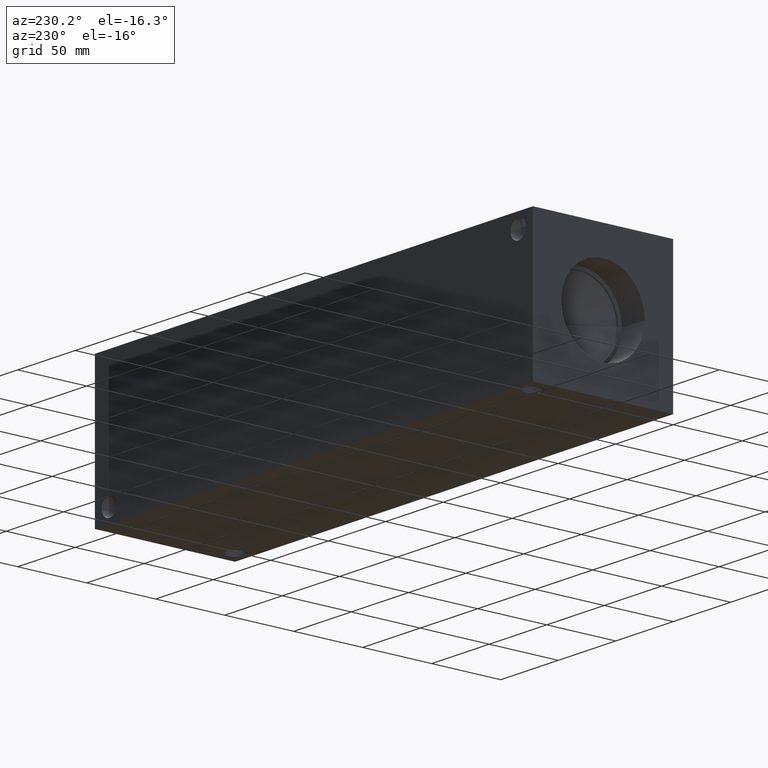
[diagram: clean part render]
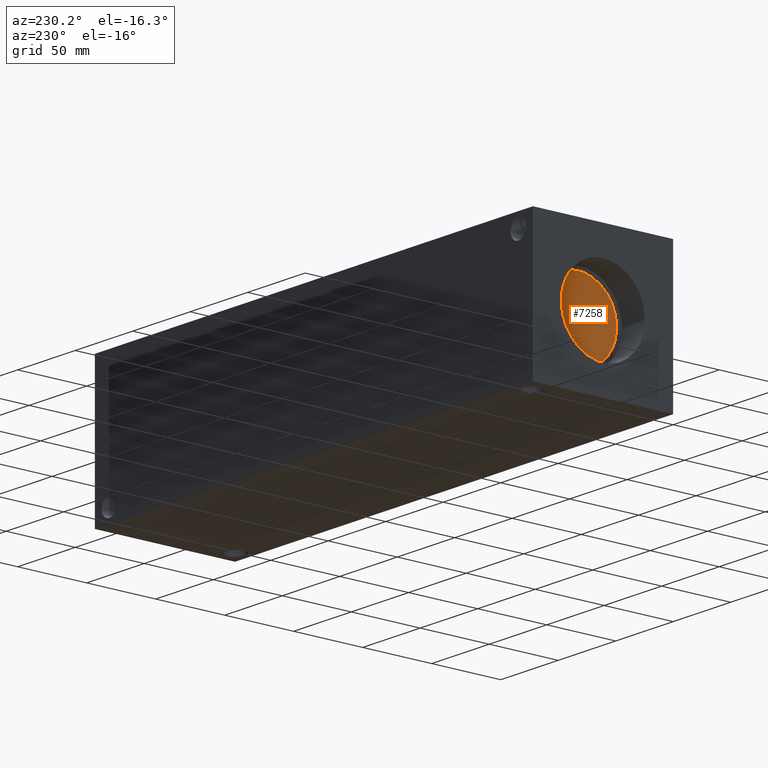
[diagram: same view with one face highlighted and labeled with its STEP entity id]
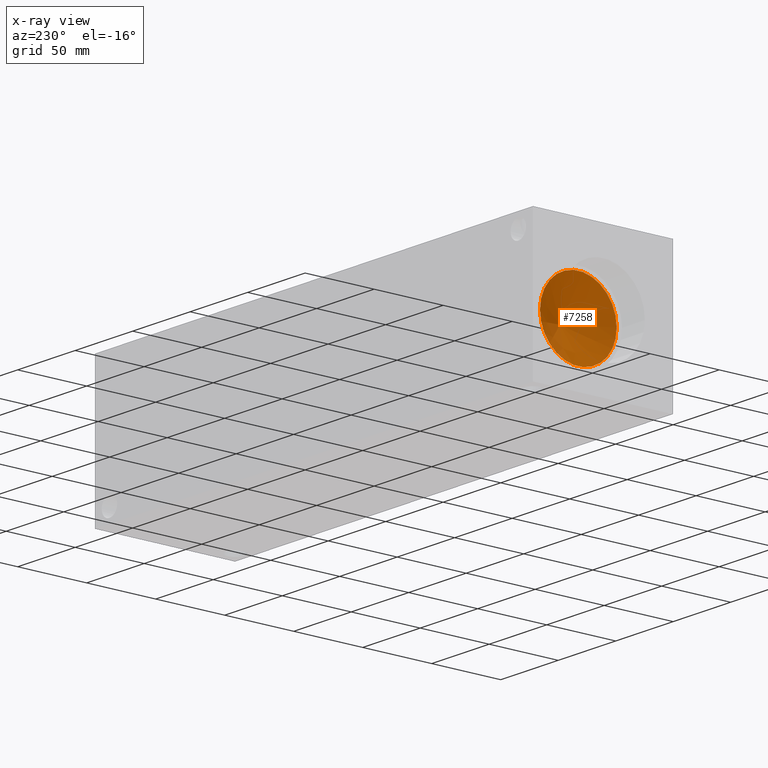
[diagram: x-ray of the same camera — body ghosted, the highlighted face saturated]
A machine part, auxiliary view. The second image highlights one B-rep face of the part: STEP entity #7258.
The next image is the same camera in x-ray: the body ghosted, the highlighted face saturated — about 1% of this face is hidden behind the body in this view.
In plain terms, the highlighted conical surface has half-angle 60 deg.
Its self-contained STEP definition (entity closure, byte-faithful):
#53=CONICAL_SURFACE('',#7606,13.8938,1.0471975511966);
#115=CIRCLE('',#7607,27.7876);
#116=CIRCLE('',#7608,27.7876);
#763=FACE_OUTER_BOUND('',#1169,.T.);
#1169=EDGE_LOOP('',(#6430,#6431,#6432,#6433));
#1898=LINE('',#12338,#2616);
#2616=VECTOR('',#8984,13.8938);
#3489=VERTEX_POINT('',#12334);
#3490=VERTEX_POINT('',#12335);
#3491=VERTEX_POINT('',#12337);
#4479=EDGE_CURVE('',#3489,#3490,#115,.T.);
#4480=EDGE_CURVE('',#3490,#3491,#1898,.T.);
#4481=EDGE_CURVE('',#3490,#3489,#116,.T.);
#6430=ORIENTED_EDGE('',*,*,#4479,.T.);
#6431=ORIENTED_EDGE('',*,*,#4480,.T.);
#6432=ORIENTED_EDGE('',*,*,#4480,.F.);
#6433=ORIENTED_EDGE('',*,*,#4481,.T.);
#7258=ADVANCED_FACE('',(#763),#53,.F.);
#7606=AXIS2_PLACEMENT_3D('',#12333,#8980,#8981);
#7607=AXIS2_PLACEMENT_3D('',#12336,#8982,#8983);
#7608=AXIS2_PLACEMENT_3D('',#12339,#8985,#8986);
#8980=DIRECTION('center_axis',(-1.,0.,0.));
#8981=DIRECTION('ref_axis',(0.,1.,0.));
#8982=DIRECTION('center_axis',(-1.,0.,0.));
#8983=DIRECTION('ref_axis',(0.,1.,0.));
#8984=DIRECTION('',(0.5,0.866025403784439,-1.06057523872491E-16));
#8985=DIRECTION('center_axis',(-1.,0.,0.));
#8986=DIRECTION('ref_axis',(0.,1.,0.));
#12333=CARTESIAN_POINT('Origin',(29.5395091700668,50.8,50.8));
#12334=CARTESIAN_POINT('',(21.51792,78.5876,50.8));
#12335=CARTESIAN_POINT('',(21.51792,23.0124,50.8));
#12336=CARTESIAN_POINT('Origin',(21.51792,50.8,50.8));
#12337=CARTESIAN_POINT('',(37.5610983401336,50.8,50.8));
#12338=CARTESIAN_POINT('',(29.5395091700668,36.9062,50.8));
#12339=CARTESIAN_POINT('Origin',(21.51792,50.8,50.8));